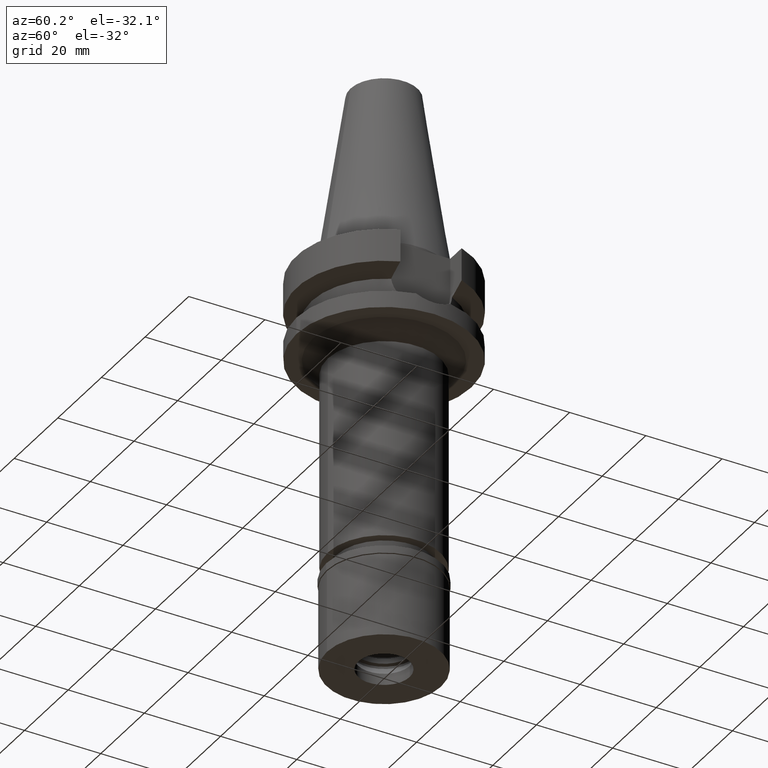
[diagram: clean part render]
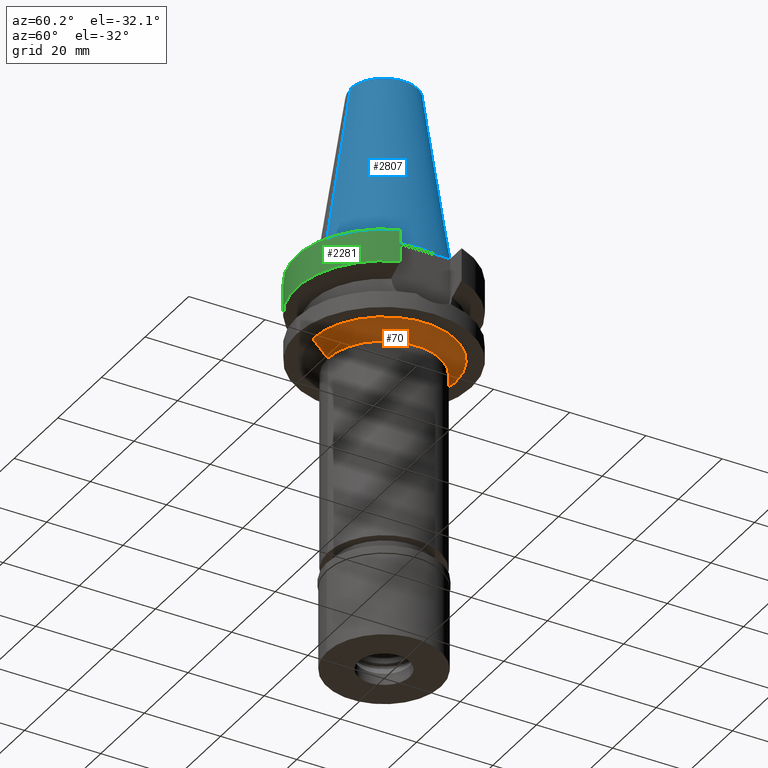
[diagram: same view with three faces highlighted in distinct colors, each labeled with its STEP entity id]
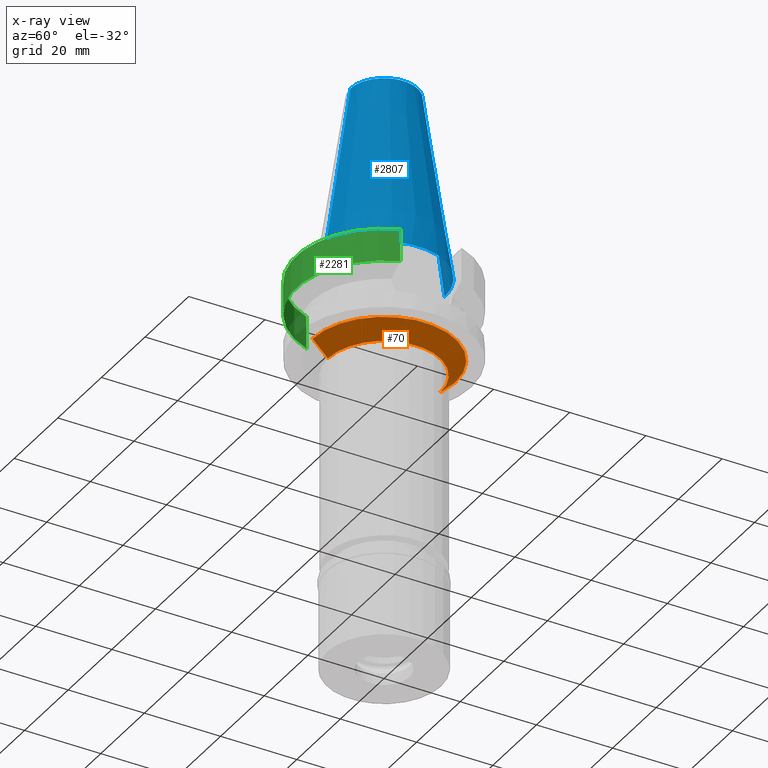
[diagram: x-ray of the same camera — body ghosted, the three highlighted faces saturated]
A machine part, auxiliary view with three faces highlighted in distinct colors.
The next image is the same camera in x-ray (body ghosted, the three faces saturated) — at least one of them is partly hidden behind the body in this view.
Their STEP definitions:

[orange] entity #70 — the highlighted conical surface has half-angle 45 deg.
#24 = AXIS2_PLACEMENT_3D ( 'NONE', #1168, #2493, #2008 ) ;
#30 = VERTEX_POINT ( 'NONE', #2236 ) ;
#70 = ADVANCED_FACE ( 'NONE', ( #429 ), #2656, .T. ) ;
#113 = ORIENTED_EDGE ( 'NONE', *, *, #2478, .F. ) ;
#200 = DIRECTION ( 'NONE',  ( 0.0000000000000000000, 0.0000000000000000000, 1.000000000000000000 ) ) ;
#205 = CIRCLE ( 'NONE', #1672, 18.75000000000000000 ) ;
#322 = CARTESIAN_POINT ( 'NONE',  ( 0.0000000000000000000, 14.75000000000000000, -26.00000000000000000 ) ) ;
#394 = DIRECTION ( 'NONE',  ( 0.0000000000000000000, 0.7071067811865474617, -0.7071067811865474617 ) ) ;
#418 = EDGE_CURVE ( 'NONE', #1931, #2223, #205, .T. ) ;
#429 = FACE_OUTER_BOUND ( 'NONE', #617, .T. ) ;
#432 = CARTESIAN_POINT ( 'NONE',  ( 0.0000000000000000000, 18.75000000000000000, -22.00000000000000000 ) ) ;
#519 = VERTEX_POINT ( 'NONE', #322 ) ;
#617 = EDGE_LOOP ( 'NONE', ( #2343, #677, #2120, #113 ) ) ;
#625 = CARTESIAN_POINT ( 'NONE',  ( 0.0000000000000000000, -18.75000000000000000, -22.00000000000000000 ) ) ;
#677 = ORIENTED_EDGE ( 'NONE', *, *, #1217, .T. ) ;
#681 = LINE ( 'NONE', #2242, #2637 ) ;
#912 = AXIS2_PLACEMENT_3D ( 'NONE', #2882, #200, #1780 ) ;
#1168 = CARTESIAN_POINT ( 'NONE',  ( 0.0000000000000000000, 0.0000000000000000000, -26.00000000000000000 ) ) ;
#1217 = EDGE_CURVE ( 'NONE', #2223, #30, #1517, .T. ) ;
#1426 = EDGE_CURVE ( 'NONE', #519, #30, #2805, .T. ) ;
#1517 = LINE ( 'NONE', #1531, #2662 ) ;
#1531 = CARTESIAN_POINT ( 'NONE',  ( 0.0000000000000000000, -18.75000000000000000, -22.00000000000000000 ) ) ;
#1672 = AXIS2_PLACEMENT_3D ( 'NONE', #2061, #2740, #2517 ) ;
#1780 = DIRECTION ( 'NONE',  ( 0.0000000000000000000, 1.000000000000000000, 0.0000000000000000000 ) ) ;
#1931 = VERTEX_POINT ( 'NONE', #432 ) ;
#2008 = DIRECTION ( 'NONE',  ( 0.0000000000000000000, 1.000000000000000000, 0.0000000000000000000 ) ) ;
#2061 = CARTESIAN_POINT ( 'NONE',  ( 0.0000000000000000000, 0.0000000000000000000, -22.00000000000000000 ) ) ;
#2120 = ORIENTED_EDGE ( 'NONE', *, *, #1426, .F. ) ;
#2223 = VERTEX_POINT ( 'NONE', #625 ) ;
#2236 = CARTESIAN_POINT ( 'NONE',  ( 0.0000000000000000000, -14.75000000000000000, -26.00000000000000000 ) ) ;
#2242 = CARTESIAN_POINT ( 'NONE',  ( 0.0000000000000000000, 18.75000000000000000, -22.00000000000000000 ) ) ;
#2343 = ORIENTED_EDGE ( 'NONE', *, *, #418, .T. ) ;
#2478 = EDGE_CURVE ( 'NONE', #1931, #519, #681, .T. ) ;
#2479 = DIRECTION ( 'NONE',  ( 0.0000000000000000000, -0.7071067811865474617, -0.7071067811865474617 ) ) ;
#2493 = DIRECTION ( 'NONE',  ( 0.0000000000000000000, 0.0000000000000000000, -1.000000000000000000 ) ) ;
#2517 = DIRECTION ( 'NONE',  ( 0.0000000000000000000, 1.000000000000000000, 0.0000000000000000000 ) ) ;
#2637 = VECTOR ( 'NONE', #2479, 1000.000000000000114 ) ;
#2656 = CONICAL_SURFACE ( 'NONE', #912, 16.75000000000000000, 0.7853981633972997312 ) ;
#2662 = VECTOR ( 'NONE', #394, 1000.000000000000114 ) ;
#2740 = DIRECTION ( 'NONE',  ( 0.0000000000000000000, 0.0000000000000000000, -1.000000000000000000 ) ) ;
#2805 = CIRCLE ( 'NONE', #24, 14.75000000000000000 ) ;
#2882 = CARTESIAN_POINT ( 'NONE',  ( 0.0000000000000000000, 0.0000000000000000000, -24.00000000000000000 ) ) ;

[blue] entity #2807 — the highlighted conical surface has half-angle 8.297 deg.
#166 = EDGE_CURVE ( 'NONE', #235, #1490, #1303, .T. ) ;
#167 = VECTOR ( 'NONE', #2054, 1000.000000000000114 ) ;
#235 = VERTEX_POINT ( 'NONE', #2078 ) ;
#397 = FACE_OUTER_BOUND ( 'NONE', #782, .T. ) ;
#567 = DIRECTION ( 'NONE',  ( 0.0000000000000000000, 1.000000000000000000, 0.0000000000000000000 ) ) ;
#728 = ORIENTED_EDGE ( 'NONE', *, *, #166, .T. ) ;
#774 = EDGE_CURVE ( 'NONE', #1872, #1375, #1538, .T. ) ;
#782 = EDGE_LOOP ( 'NONE', ( #1122, #728, #1903, #1657 ) ) ;
#820 = AXIS2_PLACEMENT_3D ( 'NONE', #1987, #2884, #873 ) ;
#869 = DIRECTION ( 'NONE',  ( 0.0000000000000000000, -0.1443043893539925626, -0.9895333461855498891 ) ) ;
#873 = DIRECTION ( 'NONE',  ( 0.0000000000000000000, 1.000000000000000000, 0.0000000000000000000 ) ) ;
#945 = DIRECTION ( 'NONE',  ( 0.0000000000000000000, 0.0000000000000000000, -1.000000000000000000 ) ) ;
#962 = CARTESIAN_POINT ( 'NONE',  ( 0.0000000000000000000, 8.816791732783000768, 48.39999999999999858 ) ) ;
#1080 = CARTESIAN_POINT ( 'NONE',  ( 0.0000000000000000000, -8.816791732783000768, 48.39999999999999858 ) ) ;
#1089 = CIRCLE ( 'NONE', #820, 8.816791732783000768 ) ;
#1122 = ORIENTED_EDGE ( 'NONE', *, *, #2063, .T. ) ;
#1267 = CARTESIAN_POINT ( 'NONE',  ( 0.0000000000000000000, 8.816791732783000768, 48.39999999999999858 ) ) ;
#1300 = DIRECTION ( 'NONE',  ( 0.0000000000000000000, -1.000000000000000000, 0.0000000000000000000 ) ) ;
#1303 = LINE ( 'NONE', #1080, #2708 ) ;
#1375 = VERTEX_POINT ( 'NONE', #2022 ) ;
#1490 = VERTEX_POINT ( 'NONE', #1797 ) ;
#1538 = LINE ( 'NONE', #962, #167 ) ;
#1552 = AXIS2_PLACEMENT_3D ( 'NONE', #2635, #2676, #1300 ) ;
#1577 = CIRCLE ( 'NONE', #1816, 15.87500000000000000 ) ;
#1581 = EDGE_CURVE ( 'NONE', #1375, #1490, #1577, .T. ) ;
#1657 = ORIENTED_EDGE ( 'NONE', *, *, #774, .F. ) ;
#1797 = CARTESIAN_POINT ( 'NONE',  ( 0.0000000000000000000, -15.87500000000000000, -1.776356839399999796E-13 ) ) ;
#1816 = AXIS2_PLACEMENT_3D ( 'NONE', #2794, #945, #567 ) ;
#1872 = VERTEX_POINT ( 'NONE', #1267 ) ;
#1903 = ORIENTED_EDGE ( 'NONE', *, *, #1581, .F. ) ;
#1987 = CARTESIAN_POINT ( 'NONE',  ( 0.0000000000000000000, 1.521011324540999938E-14, 48.39999999999999858 ) ) ;
#2022 = CARTESIAN_POINT ( 'NONE',  ( 0.0000000000000000000, 15.87500000000000000, -1.776356839399999796E-13 ) ) ;
#2054 = DIRECTION ( 'NONE',  ( 0.0000000000000000000, 0.1443043893539925626, -0.9895333461855498891 ) ) ;
#2063 = EDGE_CURVE ( 'NONE', #1872, #235, #1089, .T. ) ;
#2078 = CARTESIAN_POINT ( 'NONE',  ( 0.0000000000000000000, -8.816791732783000768, 48.39999999999999858 ) ) ;
#2635 = CARTESIAN_POINT ( 'NONE',  ( 0.0000000000000000000, 1.521011324540999938E-14, 24.19999999999999929 ) ) ;
#2676 = DIRECTION ( 'NONE',  ( 0.0000000000000000000, 0.0000000000000000000, -1.000000000000000000 ) ) ;
#2708 = VECTOR ( 'NONE', #869, 1000.000000000000114 ) ;
#2794 = CARTESIAN_POINT ( 'NONE',  ( 0.0000000000000000000, 1.521011324540999938E-14, -3.694822225953000089E-13 ) ) ;
#2807 = ADVANCED_FACE ( 'NONE', ( #397 ), #2830, .T. ) ;
#2830 = CONICAL_SURFACE ( 'NONE', #1552, 12.34589586639000025, 0.1448099680379422438 ) ;
#2884 = DIRECTION ( 'NONE',  ( 0.0000000000000000000, 0.0000000000000000000, -1.000000000000000000 ) ) ;

[green] entity #2281 — the highlighted cylindrical surface (partial cylindrical patch) has radius 23 mm, axis along (0, 0, -1).
#143 = DIRECTION ( 'NONE',  ( 1.843189971012992708E-08, -4.933165888406983159E-08, 0.9999999999999985567 ) ) ;
#151 = VERTEX_POINT ( 'NONE', #1746 ) ;
#227 = CIRCLE ( 'NONE', #1879, 23.00000000000000000 ) ;
#379 = CARTESIAN_POINT ( 'NONE',  ( 0.0000000000000000000, 1.905183025433999888E-14, 55.57000000000000028 ) ) ;
#391 = DIRECTION ( 'NONE',  ( 0.0000000000000000000, -1.000000000000000000, 0.0000000000000000000 ) ) ;
#489 = DIRECTION ( 'NONE',  ( 0.0000000000000000000, 0.0000000000000000000, -1.000000000000000000 ) ) ;
#553 = VECTOR ( 'NONE', #143, 1000.000000000000114 ) ;
#582 = CARTESIAN_POINT ( 'NONE',  ( -21.54524325238000060, -8.049999577366000025, -9.567211146628999074 ) ) ;
#591 = VECTOR ( 'NONE', #1090, 1000.000000000000114 ) ;
#592 = EDGE_CURVE ( 'NONE', #151, #742, #1550, .T. ) ;
#615 = FACE_OUTER_BOUND ( 'NONE', #903, .T. ) ;
#742 = VERTEX_POINT ( 'NONE', #1980 ) ;
#885 = AXIS2_PLACEMENT_3D ( 'NONE', #379, #1280, #391 ) ;
#903 = EDGE_LOOP ( 'NONE', ( #976, #2729, #2767, #1104 ) ) ;
#920 = CARTESIAN_POINT ( 'NONE',  ( 0.0000000000000000000, 1.905183025433999888E-14, -1.000000000000000000 ) ) ;
#931 = EDGE_CURVE ( 'NONE', #151, #1585, #1149, .T. ) ;
#976 = ORIENTED_EDGE ( 'NONE', *, *, #1283, .F. ) ;
#1090 = DIRECTION ( 'NONE',  ( -9.134802528420690022E-08, -2.444862515857914628E-07, -0.9999999999999659162 ) ) ;
#1104 = ORIENTED_EDGE ( 'NONE', *, *, #931, .T. ) ;
#1148 = VERTEX_POINT ( 'NONE', #1704 ) ;
#1149 = CIRCLE ( 'NONE', #2802, 23.00000000000000000 ) ;
#1229 = CARTESIAN_POINT ( 'NONE',  ( -21.54524309446999908, -8.050000000000000711, -1.000000000000000000 ) ) ;
#1280 = DIRECTION ( 'NONE',  ( 0.0000000000000000000, 0.0000000000000000000, -1.000000000000000000 ) ) ;
#1283 = EDGE_CURVE ( 'NONE', #1148, #1585, #2413, .T. ) ;
#1347 = DIRECTION ( 'NONE',  ( 0.0000000000000000000, -1.000000000000000000, 0.0000000000000000000 ) ) ;
#1503 = CYLINDRICAL_SURFACE ( 'NONE', #885, 23.00000000000000000 ) ;
#1550 = LINE ( 'NONE', #2675, #591 ) ;
#1585 = VERTEX_POINT ( 'NONE', #1229 ) ;
#1704 = CARTESIAN_POINT ( 'NONE',  ( -21.54524325238000060, -8.049999577366000025, -9.567211146628999074 ) ) ;
#1746 = CARTESIAN_POINT ( 'NONE',  ( 21.54524309446999908, -8.050000000000000711, -1.000000000000000000 ) ) ;
#1806 = CARTESIAN_POINT ( 'NONE',  ( 0.0000000000000000000, 1.093341284896999988E-14, -9.567208369710998639 ) ) ;
#1879 = AXIS2_PLACEMENT_3D ( 'NONE', #1806, #1914, #1347 ) ;
#1914 = DIRECTION ( 'NONE',  ( 0.0000000000000000000, 0.0000000000000000000, 1.000000000000000000 ) ) ;
#1980 = CARTESIAN_POINT ( 'NONE',  ( 21.54524309446999908, -8.050000000000999023, -9.567208369710998639 ) ) ;
#2006 = EDGE_CURVE ( 'NONE', #1148, #742, #227, .T. ) ;
#2026 = DIRECTION ( 'NONE',  ( 0.0000000000000000000, -1.000000000000000000, 0.0000000000000000000 ) ) ;
#2281 = ADVANCED_FACE ( 'NONE', ( #615 ), #1503, .T. ) ;
#2413 = LINE ( 'NONE', #582, #553 ) ;
#2675 = CARTESIAN_POINT ( 'NONE',  ( 21.54524309446999908, -8.050000000000000711, -1.000000000000000000 ) ) ;
#2729 = ORIENTED_EDGE ( 'NONE', *, *, #2006, .T. ) ;
#2767 = ORIENTED_EDGE ( 'NONE', *, *, #592, .F. ) ;
#2802 = AXIS2_PLACEMENT_3D ( 'NONE', #920, #489, #2026 ) ;